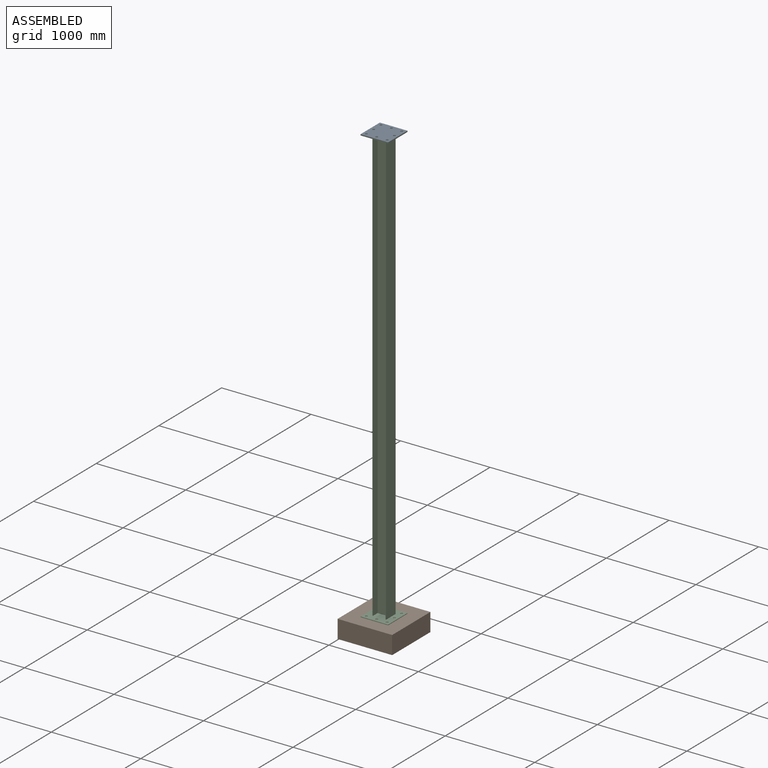
[diagram: assembled view]
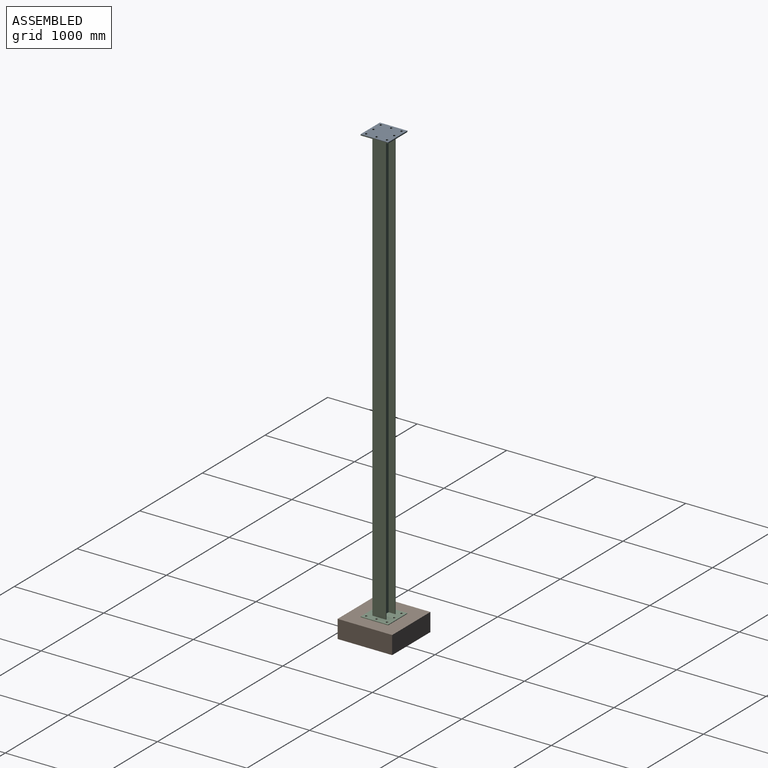
[diagram: assembled view, second angle]
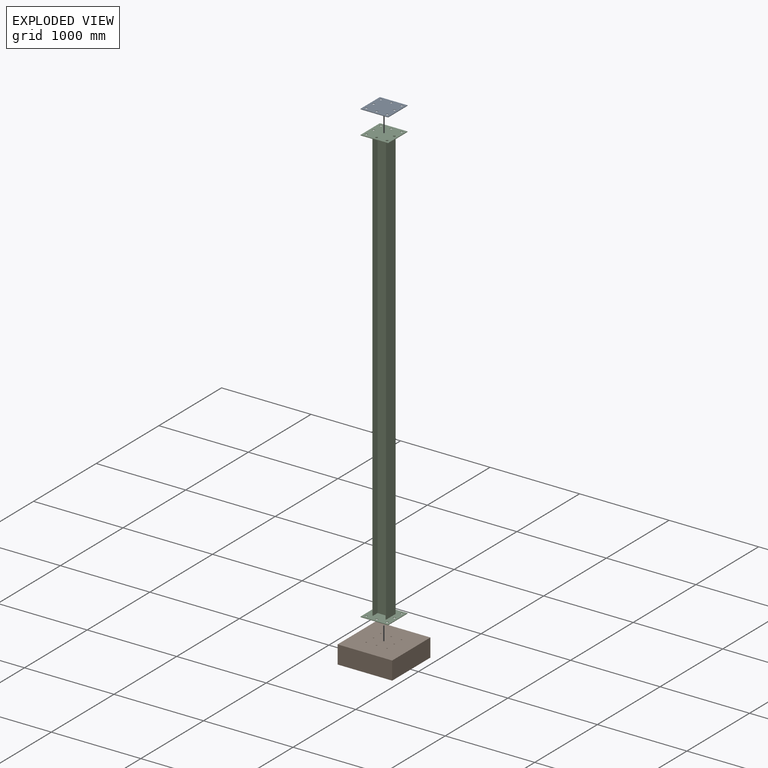
[diagram: exploded view]
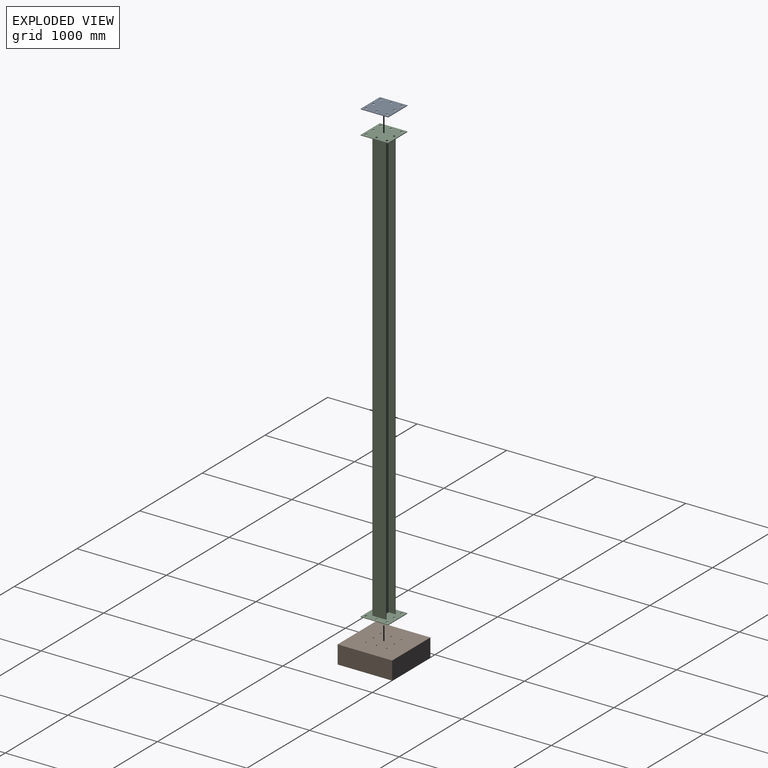
[diagram: exploded view, second angle]
ASSEMBLY  parts=3 mates=2
PART A: 16 faces, bbox 308.2x308.2x6.4 mm
  f0: plane 308.22x308.22mm, normal (0,0,1), area 90932mm2, adj f1,f2,f3,f5,f6,f7,f8,f9
  f1: plane 6.35x3.42mm, normal (1,0,0), area 21.7mm2, adj f0,f2,f4,f6
  f2: plane 6.35x3.42mm, normal (0,-1,0), area 21.7mm2, adj f0,f1,f3,f4
  f3: plane 304.8x6.35mm, normal (1,0,0), area 1935.5mm2, adj f0,f2,f4,f5
  f4: plane 308.22x308.22mm, normal (0,0,-1), area 90932mm2, adj f1,f2,f3,f5,f6,f7,f8,f9
  f5: plane 308.22x6.35mm, normal (0,1,0), area 1957.2mm2, adj f0,f3,f4,f7
  f6: plane 304.8x6.35mm, normal (0,-1,0), area 1935.5mm2, adj f0,f1,f4,f7
  f7: plane 308.22x6.35mm, normal (-1,0,0), area 1957.2mm2, adj f0,f4,f5,f6
  f8: cylinder r=12.7mm len=25.4mm, axis (0,0,-1), area 506.7mm2, adj f0,f4
  f9: cylinder r=12.7mm len=25.4mm, axis (0,0,-1), area 506.7mm2, adj f0,f4
  f10: cylinder r=12.7mm len=25.4mm, axis (0,0,-1), area 506.7mm2, adj f0,f4
  f11: cylinder r=12.7mm len=25.4mm, axis (0,0,-1), area 506.7mm2, adj f0,f4
  f12: cylinder r=12.7mm len=25.4mm, axis (0,0,-1), area 506.7mm2, adj f0,f4
  f13: cylinder r=12.7mm len=25.4mm, axis (0,0,-1), area 506.7mm2, adj f0,f4
  f14: cylinder r=12.7mm len=25.4mm, axis (0,0,-1), area 506.7mm2, adj f0,f4
  f15: cylinder r=12.7mm len=25.4mm, axis (0,0,-1), area 506.7mm2, adj f0,f4
PART B: 14 faces, bbox 609.6x609.6x203.2 mm
  f0: plane 609.6x203.2mm, normal (0,-1,0), area 123870.7mm2, adj f1,f3,f4,f5
  f1: plane 609.6x203.2mm, normal (-1,0,0), area 123870.7mm2, adj f0,f2,f4,f5
  f2: plane 609.6x203.2mm, normal (0,1,0), area 123870.7mm2, adj f1,f3,f4,f5
  f3: plane 609.6x203.2mm, normal (1,0,0), area 123870.7mm2, adj f0,f2,f4,f5
  f4: plane 609.6x609.6mm, normal (0,0,-1), area 370468.3mm2, adj f0,f1,f2,f3,f6,f7,f8,f9
  f5: plane 609.6x609.6mm, normal (0,0,1), area 370468.3mm2, adj f0,f1,f2,f3,f6,f7,f8,f9
  f6: cylinder r=6.75mm len=203.2mm, axis (0,0,1), area 8613.2mm2, adj f4,f5
  f7: cylinder r=6.75mm len=203.2mm, axis (0,0,1), area 8613.2mm2, adj f4,f5
  f8: cylinder r=6.75mm len=203.2mm, axis (0,0,1), area 8613.2mm2, adj f4,f5
  f9: cylinder r=6.75mm len=203.2mm, axis (0,0,1), area 8613.2mm2, adj f4,f5
  f10: cylinder r=6.75mm len=203.2mm, axis (0,0,1), area 8613.2mm2, adj f4,f5
  f11: cylinder r=6.75mm len=203.2mm, axis (0,0,1), area 8613.2mm2, adj f4,f5
  f12: cylinder r=6.75mm len=203.2mm, axis (0,0,1), area 8613.2mm2, adj f4,f5
  f13: cylinder r=6.75mm len=203.2mm, axis (0,0,1), area 8613.2mm2, adj f4,f5
PART C: 44 faces, bbox 308.2x308.2x4870.5 mm
  f0: plane 304.8x6.35mm, normal (0,-1,0), area 1935.5mm2, adj f1,f5,f6,f7
  f1: plane 308.22x6.35mm, normal (-1,0,0), area 1957.2mm2, adj f0,f2,f6,f7
  f2: plane 308.22x6.35mm, normal (0,1,0), area 1957.2mm2, adj f1,f3,f6,f7
  f3: plane 304.8x6.35mm, normal (1,0,0), area 1935.5mm2, adj f2,f4,f6,f7
  f4: plane 6.35x3.42mm, normal (0,-1,0), area 21.7mm2, adj f3,f5,f6,f7
  f5: plane 6.35x3.42mm, normal (1,0,0), area 21.7mm2, adj f0,f4,f6,f7
  f6: plane 308.22x308.22mm, normal (0,0,1), area 88109.3mm2, adj f0,f1,f2,f3,f4,f5,f8,f9
  f7: plane 308.22x308.22mm, normal (0,0,-1), area 90932mm2, adj f0,f1,f2,f3,f4,f5,f8,f9
  f8: cylinder r=12.7mm len=25.4mm, axis (0,0,1), area 506.7mm2, adj f6,f7
  f9: cylinder r=12.7mm len=25.4mm, axis (0,0,1), area 506.7mm2, adj f6,f7
  f10: cylinder r=12.7mm len=25.4mm, axis (0,0,1), area 506.7mm2, adj f6,f7
  f11: cylinder r=12.7mm len=25.4mm, axis (0,0,1), area 506.7mm2, adj f6,f7
  f12: cylinder r=12.7mm len=25.4mm, axis (0,0,1), area 506.7mm2, adj f6,f7
  f13: cylinder r=12.7mm len=25.4mm, axis (0,0,1), area 506.7mm2, adj f6,f7
  f14: cylinder r=12.7mm len=25.4mm, axis (0,0,1), area 506.7mm2, adj f6,f7
  f15: cylinder r=12.7mm len=25.4mm, axis (0,0,1), area 506.7mm2, adj f6,f7
  f16: plane 308.22x308.22mm, normal (0,0,1), area 90932mm2, adj f17,f18,f19,f20,f21,f22,f23,f24
  f17: cylinder r=12.7mm len=25.4mm, axis (0,0,-1), area 506.7mm2, adj f16,f25
  f18: cylinder r=12.7mm len=25.4mm, axis (0,0,-1), area 506.7mm2, adj f16,f25
  f19: cylinder r=12.7mm len=25.4mm, axis (0,0,-1), area 506.7mm2, adj f16,f25
  f20: cylinder r=12.7mm len=25.4mm, axis (0,0,-1), area 506.7mm2, adj f16,f25
  f21: cylinder r=12.7mm len=25.4mm, axis (0,0,-1), area 506.7mm2, adj f16,f25
  f22: cylinder r=12.7mm len=25.4mm, axis (0,0,-1), area 506.7mm2, adj f16,f25
  f23: cylinder r=12.7mm len=25.4mm, axis (0,0,-1), area 506.7mm2, adj f16,f25
  f24: cylinder r=12.7mm len=25.4mm, axis (0,0,-1), area 506.7mm2, adj f16,f25
  f25: plane 308.22x308.22mm, normal (0,0,-1), area 88109.3mm2, adj f17,f18,f19,f20,f21,f22,f23,f24
  f26: plane 6.35x3.42mm, normal (1,0,0), area 21.7mm2, adj f16,f25,f27,f31
  f27: plane 6.35x3.42mm, normal (0,-1,0), area 21.7mm2, adj f16,f25,f26,f28
  f28: plane 304.8x6.35mm, normal (1,0,0), area 1935.5mm2, adj f16,f25,f27,f29
  f29: plane 308.22x6.35mm, normal (0,1,0), area 1957.2mm2, adj f16,f25,f28,f30
  f30: plane 308.22x6.35mm, normal (-1,0,0), area 1957.2mm2, adj f16,f25,f29,f31
  f31: plane 304.8x6.35mm, normal (0,-1,0), area 1935.5mm2, adj f16,f25,f26,f30
  f32: plane 4857.75x152.15mm, normal (-1,0,0), area 739087.2mm2, adj f6,f25,f33,f41
  f33: plane 4857.75x6.6mm, normal (0,-1,0), area 32080.6mm2, adj f6,f25,f32,f34
  f34: plane 4857.75x73.15mm, normal (1,0,0), area 355354.1mm2, adj f6,f25,f33,f43
  f35: plane 4857.75x73.15mm, normal (-1,0,0), area 355354.1mm2, adj f6,f25,f36,f43
  f36: plane 4857.75x6.6mm, normal (0,-1,0), area 32080.6mm2, adj f6,f25,f35,f37
  f37: plane 4857.75x152.15mm, normal (1,0,0), area 739087.2mm2, adj f6,f25,f36,f38
  f38: plane 4857.75x6.6mm, normal (0,1,0), area 32080.6mm2, adj f6,f25,f37,f39
  f39: plane 4857.75x73.15mm, normal (-1,0,0), area 355354.1mm2, adj f6,f25,f38,f42
  f40: plane 4857.75x73.15mm, normal (1,0,0), area 355354.1mm2, adj f6,f25,f41,f42
  f41: plane 4857.75x6.6mm, normal (0,1,0), area 32080.6mm2, adj f6,f25,f32,f40
  f42: plane 4857.75x139.19mm, normal (0,1,0), area 676159.9mm2, adj f6,f25,f39,f40
  f43: plane 4857.75x139.19mm, normal (0,-1,0), area 676159.9mm2, adj f6,f25,f34,f35
PLACE A t=(3431.31,-2.7,1191.38)mm
PLACE B t=(3431.29,-4.4,1191.38)mm
PLACE C rot(axis=(0,0,-1),180deg) t=(-3129.88,6476.25,1191.38)mm
MATE fastened B.f5 <-> C.f7  axis (0,0,1) through (150.71,3236.77,-6957.89)mm
MATE fastened A.f4 <-> C.f16  axis (0,0,-1) through (150.71,3236.77,-2087.44)mm
